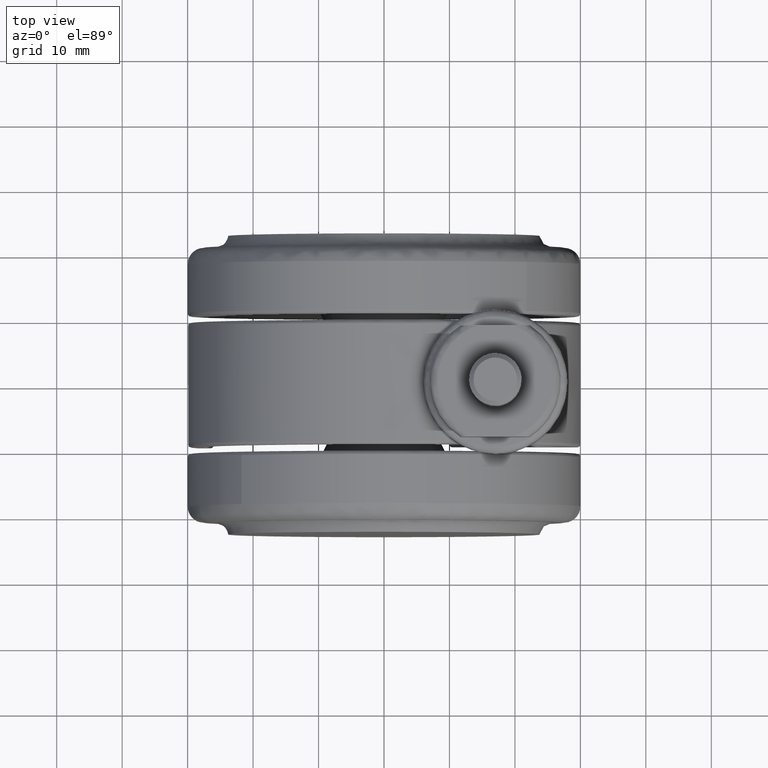
[diagram: clean part render]
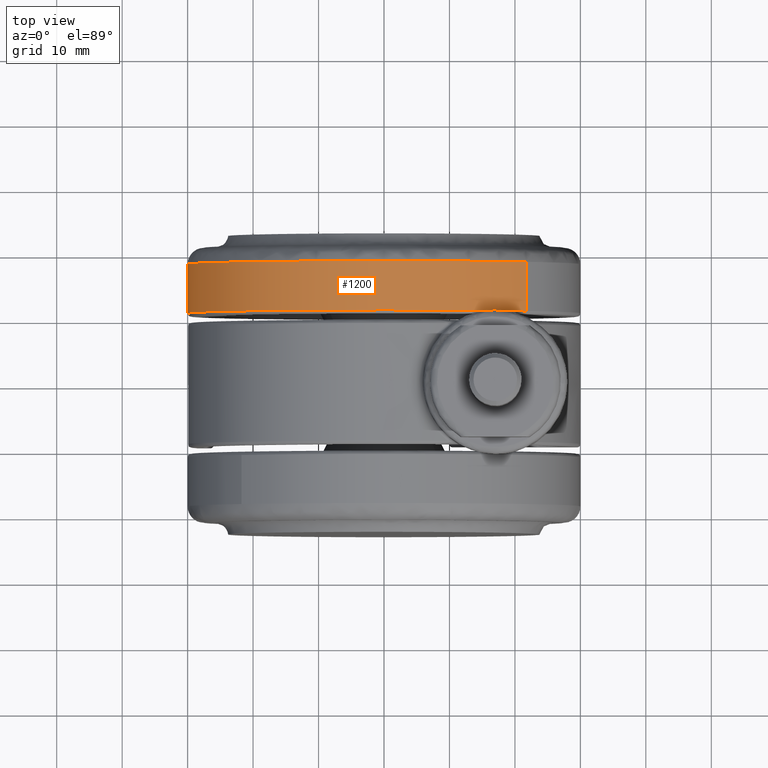
[diagram: same view with one face highlighted and labeled with its STEP entity id]
A machine part, top view. The second image highlights one B-rep face of the part: STEP entity #1200.
In plain terms, the highlighted face is a freeform B-spline surface patch.
Its self-contained STEP definition (entity closure, byte-faithful):
#891=CARTESIAN_POINT('',(-29.990525678498560,10.999999999857030,0.753902863317289));
#892=VERTEX_POINT('',#891);
#906=CARTESIAN_POINT('',(-21.761231919898879,10.999999999927139,-20.650636438821259));
#907=VERTEX_POINT('',#906);
#908=CARTESIAN_POINT('',(-29.990525678498564,10.999999999857028,0.753902863317289));
#909=CARTESIAN_POINT('',(-29.999999999999996,10.999999999857911,0.377010963709972));
#910=CARTESIAN_POINT('',(-30.0,10.999999999858810,-2.631466E-015));
#911=CARTESIAN_POINT('',(-29.999999999999996,10.999999999887326,-11.968785714438784));
#912=CARTESIAN_POINT('',(-21.761231919898893,10.999999999927157,-20.650636438821273));
#920=(BOUNDED_CURVE()B_SPLINE_CURVE(2,(#908,#909,#910,#911,#912),.UNSPECIFIED.,.F.,.U.)B_SPLINE_CURVE_WITH_KNOTS((3,2,3),(0.245579891769707,0.250000000000000,0.371049520889213),.UNSPECIFIED.)CURVE()GEOMETRIC_REPRESENTATION_ITEM()RATIONAL_B_SPLINE_CURVE((0.989826157681350,0.994821521091703,1.0,0.858181664763729,0.853699661796709))REPRESENTATION_ITEM(''));
#921=EDGE_CURVE('',#892,#907,#920,.T.);
#1002=CARTESIAN_POINT('',(21.761231919898879,10.999999999927130,20.650636438821259));
#1003=VERTEX_POINT('',#1002);
#1019=CARTESIAN_POINT('',(1.347067E-015,11.0,30.0));
#1020=VERTEX_POINT('',#1019);
#1021=CARTESIAN_POINT('',(21.761231919898893,10.999999999927150,20.650636438821273));
#1022=CARTESIAN_POINT('',(12.889017858354073,10.999999999970047,30.000000000000004));
#1023=CARTESIAN_POINT('',(1.347067E-015,11.0,30.0));
#1031=(BOUNDED_CURVE()B_SPLINE_CURVE(2,(#1021,#1022,#1023),.UNSPECIFIED.,.F.,.U.)B_SPLINE_CURVE_WITH_KNOTS((3,3),(0.871049520889213,1.0),.UNSPECIFIED.)CURVE()GEOMETRIC_REPRESENTATION_ITEM()RATIONAL_B_SPLINE_CURVE((0.853699661796709,0.848925116422819,1.0))REPRESENTATION_ITEM(''));
#1032=EDGE_CURVE('',#1003,#1020,#1031,.T.);
#1034=CARTESIAN_POINT('',(1.347067E-015,11.0,30.0));
#1035=CARTESIAN_POINT('',(-29.255336285402727,10.999999999928518,30.0));
#1036=CARTESIAN_POINT('',(-29.990525678498564,10.999999999857028,0.753902863317289));
#1044=(BOUNDED_CURVE()B_SPLINE_CURVE(2,(#1034,#1035,#1036),.UNSPECIFIED.,.F.,.U.)B_SPLINE_CURVE_WITH_KNOTS((3,3),(0.0,0.245579891769707),.UNSPECIFIED.)CURVE()GEOMETRIC_REPRESENTATION_ITEM()RATIONAL_B_SPLINE_CURVE((1.0,0.712285260094844,0.989826157681350))REPRESENTATION_ITEM(''));
#1045=EDGE_CURVE('',#1020,#892,#1044,.T.);
#1070=CARTESIAN_POINT('',(-21.761231910157260,18.500000000139579,-20.650636449086779));
#1071=VERTEX_POINT('',#1070);
#1072=CARTESIAN_POINT('',(-21.761231910157260,18.500000000139579,-20.650636449086779));
#1073=CARTESIAN_POINT('',(-21.761231919898879,10.999999999927139,-20.650636438821259));
#1074=QUASI_UNIFORM_CURVE('',1,(#1072,#1073),.UNSPECIFIED.,.F.,.U.);
#1075=EDGE_CURVE('',#1071,#907,#1074,.T.);
#1107=CARTESIAN_POINT('',(21.761231910157271,18.500000000139561,20.650636449086779));
#1108=VERTEX_POINT('',#1107);
#1122=CARTESIAN_POINT('',(21.761231910157271,18.500000000139561,20.650636449086779));
#1123=CARTESIAN_POINT('',(21.761231919898879,10.999999999927130,20.650636438821259));
#1124=QUASI_UNIFORM_CURVE('',1,(#1122,#1123),.UNSPECIFIED.,.F.,.U.);
#1125=EDGE_CURVE('',#1108,#1003,#1124,.T.);
#1132=CARTESIAN_POINT('',(21.761231130368628,18.687500000279481,20.650637270812609));
#1133=CARTESIAN_POINT('',(1.110593859556011,18.687500000279481,42.411868401181231));
#1134=CARTESIAN_POINT('',(-20.650637270812609,18.687500000279488,21.761231130368621));
#1135=CARTESIAN_POINT('',(-42.411868401181231,18.687500000279492,1.110593859556008));
#1136=CARTESIAN_POINT('',(-21.761231130368621,18.687500000279488,-20.650637270812609));
#1137=CARTESIAN_POINT('',(21.761231130368621,10.807812499846460,20.650637270812609));
#1138=CARTESIAN_POINT('',(1.110593859556010,10.807812499846467,42.411868401181231));
#1139=CARTESIAN_POINT('',(-20.650637270812609,10.807812499846470,21.761231130368621));
#1140=CARTESIAN_POINT('',(-42.411868401181231,10.807812499846472,1.110593859556008));
#1141=CARTESIAN_POINT('',(-21.761231130368621,10.807812499846470,-20.650637270812609));
#1149=(BOUNDED_SURFACE()B_SPLINE_SURFACE(2,1,((#1132,#1137),(#1133,#1138),(#1134,#1139),(#1135,#1140),(#1136,#1141)),.UNSPECIFIED.,.F.,.F.,.U.)B_SPLINE_SURFACE_WITH_KNOTS((3,2,3),(2,2),(0.0,49.705627484771391,99.411254969542782),(0.0,7.879687500433019),.UNSPECIFIED.)GEOMETRIC_REPRESENTATION_ITEM()RATIONAL_B_SPLINE_SURFACE(((1.0,1.0),(0.707106781186548,0.707106781186548),(1.0,1.0),(0.707106781186548,0.707106781186548),(1.0,1.0)))REPRESENTATION_ITEM('')SURFACE());
#1150=ORIENTED_EDGE('',*,*,#921,.F.);
#1151=ORIENTED_EDGE('',*,*,#1045,.F.);
#1152=ORIENTED_EDGE('',*,*,#1032,.F.);
#1153=ORIENTED_EDGE('',*,*,#1125,.F.);
#1154=CARTESIAN_POINT('',(2.265522E-015,18.500000000000000,30.0));
#1155=VERTEX_POINT('',#1154);
#1156=CARTESIAN_POINT('',(21.761231910157274,18.500000000139565,20.650636449086807));
#1157=CARTESIAN_POINT('',(12.889017849971918,18.500000000057828,30.0));
#1158=CARTESIAN_POINT('',(2.265522E-015,18.500000000000000,30.0));
#1166=(BOUNDED_CURVE()B_SPLINE_CURVE(2,(#1156,#1157,#1158),.UNSPECIFIED.,.F.,.U.)B_SPLINE_CURVE_WITH_KNOTS((3,3),(0.871049520960404,1.0),.UNSPECIFIED.)CURVE()GEOMETRIC_REPRESENTATION_ITEM()RATIONAL_B_SPLINE_CURVE((0.853699661791437,0.848925116506225,1.0))REPRESENTATION_ITEM(''));
#1167=EDGE_CURVE('',#1108,#1155,#1166,.T.);
#1168=ORIENTED_EDGE('',*,*,#1167,.T.);
#1169=CARTESIAN_POINT('',(-29.999999999999989,18.500000000269189,5.284502E-015));
#1170=VERTEX_POINT('',#1169);
#1171=CARTESIAN_POINT('',(2.265522E-015,18.500000000000000,30.0));
#1172=CARTESIAN_POINT('',(-29.999999999999993,18.500000000134595,29.999999999999993));
#1173=CARTESIAN_POINT('',(-29.999999999999989,18.500000000269189,5.284502E-015));
#1181=(BOUNDED_CURVE()B_SPLINE_CURVE(2,(#1171,#1172,#1173),.UNSPECIFIED.,.F.,.U.)B_SPLINE_CURVE_WITH_KNOTS((3,3),(0.0,0.250000000000000),.UNSPECIFIED.)CURVE()GEOMETRIC_REPRESENTATION_ITEM()RATIONAL_B_SPLINE_CURVE((1.0,0.707106781186547,1.0))REPRESENTATION_ITEM(''));
#1182=EDGE_CURVE('',#1155,#1170,#1181,.T.);
#1183=ORIENTED_EDGE('',*,*,#1182,.T.);
#1184=CARTESIAN_POINT('',(-29.999999999999989,18.500000000269189,5.284502E-015));
#1185=CARTESIAN_POINT('',(-30.0,18.500000000215490,-11.968785722641067));
#1186=CARTESIAN_POINT('',(-21.761231910157278,18.500000000139583,-20.650636449086800));
#1194=(BOUNDED_CURVE()B_SPLINE_CURVE(2,(#1184,#1185,#1186),.UNSPECIFIED.,.F.,.U.)B_SPLINE_CURVE_WITH_KNOTS((3,3),(0.250000000000000,0.371049520960404),.UNSPECIFIED.)CURVE()GEOMETRIC_REPRESENTATION_ITEM()RATIONAL_B_SPLINE_CURVE((1.0,0.858181664680323,0.853699661791437))REPRESENTATION_ITEM(''));
#1195=EDGE_CURVE('',#1170,#1071,#1194,.T.);
#1196=ORIENTED_EDGE('',*,*,#1195,.T.);
#1197=ORIENTED_EDGE('',*,*,#1075,.T.);
#1198=EDGE_LOOP('',(#1150,#1151,#1152,#1153,#1168,#1183,#1196,#1197));
#1199=FACE_OUTER_BOUND('',#1198,.T.);
#1200=ADVANCED_FACE('',(#1199),#1149,.T.);